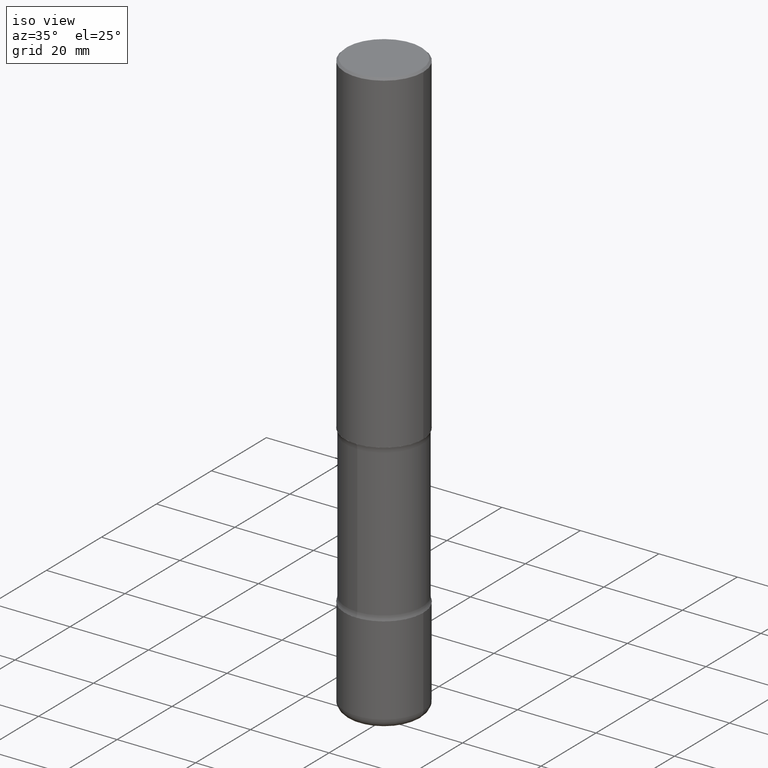
[diagram: clean part render]
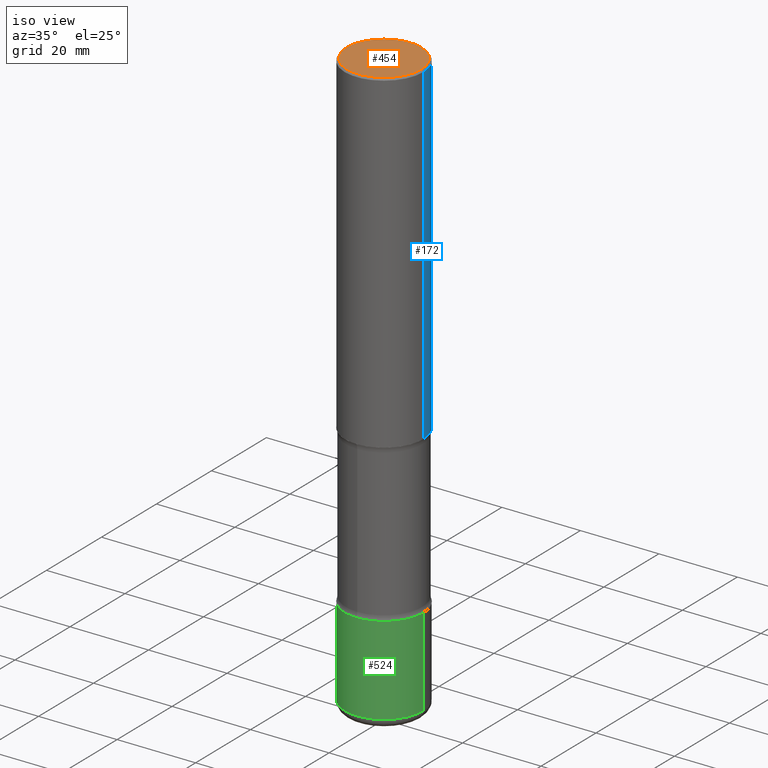
[diagram: same view with three faces highlighted in distinct colors, each labeled with its STEP entity id]
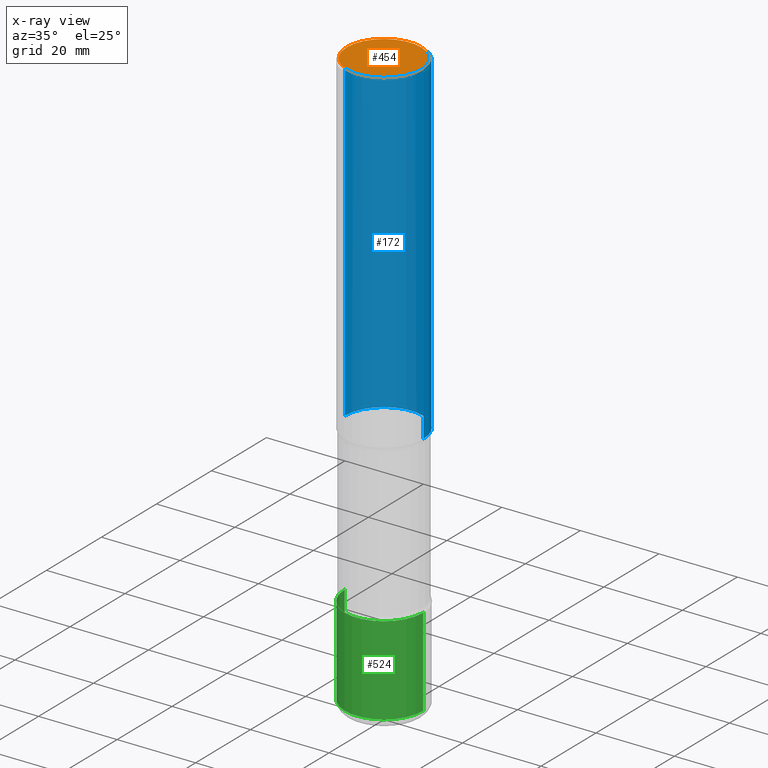
[diagram: x-ray of the same camera — body ghosted, the three highlighted faces saturated]
A machine part, iso view with three faces highlighted in distinct colors.
The next image is the same camera in x-ray (body ghosted, the three faces saturated) — at least one of them is partly hidden behind the body in this view.
Their STEP definitions:

[orange] entity #454 — the highlighted planar face has unit normal (0, -0, -1).
#30 = CARTESIAN_POINT ( 'NONE',  ( -2.087702828670439639E-46, 2.980686340760894400E-32, 8.537024980200822558E-18 ) ) ;
#56 = DIRECTION ( 'NONE',  ( 2.438088387897960049E-29, -3.491481338843145188E-15, -1.000000000000000000 ) ) ;
#63 = ORIENTED_EDGE ( 'NONE', *, *, #123, .T. ) ;
#68 = DIRECTION ( 'NONE',  ( -2.445468806185136597E-29, 3.491481338843145583E-15, 1.000000000000000000 ) ) ;
#98 = PLANE ( 'NONE',  #419 ) ;
#111 = DIRECTION ( 'NONE',  ( 1.000000000000000000, -6.982962677686266711E-15, 4.876212485538976239E-29 ) ) ;
#112 = AXIS2_PLACEMENT_3D ( 'NONE', #30, #531, #200 ) ;
#117 = DIRECTION ( 'NONE',  ( -1.000000000000000000, 6.982962677686265922E-15, -4.876176775795935793E-29 ) ) ;
#123 = EDGE_CURVE ( 'NONE', #320, #530, #335, .T. ) ;
#154 = EDGE_CURVE ( 'NONE', #530, #320, #412, .T. ) ;
#185 = EDGE_LOOP ( 'NONE', ( #63, #556 ) ) ;
#200 = DIRECTION ( 'NONE',  ( 1.000000000000000000, -6.982962677686266711E-15, 4.876212485538976239E-29 ) ) ;
#320 = VERTEX_POINT ( 'NONE', #401 ) ;
#329 = FACE_OUTER_BOUND ( 'NONE', #185, .T. ) ;
#335 = CIRCLE ( 'NONE', #441, 0.3736999999999999211 ) ;
#401 = CARTESIAN_POINT ( 'NONE',  ( -0.3736999999999999211, 2.644447966039788269E-15, 8.537024980182450727E-18 ) ) ;
#412 = CIRCLE ( 'NONE', #112, 0.3736999999999999211 ) ;
#419 = AXIS2_PLACEMENT_3D ( 'NONE', #479, #56, #117 ) ;
#441 = AXIS2_PLACEMENT_3D ( 'NONE', #458, #68, #111 ) ;
#448 = CARTESIAN_POINT ( 'NONE',  ( 0.3736999999999999211, -2.667287895133367964E-15, 8.537024980219274507E-18 ) ) ;
#454 = ADVANCED_FACE ( 'NONE', ( #329 ), #98, .F. ) ;
#458 = CARTESIAN_POINT ( 'NONE',  ( -2.087702828670439639E-46, 2.980686340760894400E-32, 8.537024980200822558E-18 ) ) ;
#479 = CARTESIAN_POINT ( 'NONE',  ( 2.609533152651356620E-15, 0.3736999999999999211, -1.300498063835582814E-15 ) ) ;
#530 = VERTEX_POINT ( 'NONE', #448 ) ;
#531 = DIRECTION ( 'NONE',  ( -2.445468806185136597E-29, 3.491481338843145583E-15, 1.000000000000000000 ) ) ;
#556 = ORIENTED_EDGE ( 'NONE', *, *, #154, .T. ) ;

[blue] entity #172 — the highlighted cylindrical surface (partial cylindrical patch) has radius 10 mm, axis along (-0, 0, 1).
#10 = DIRECTION ( 'NONE',  ( -2.445468806185136597E-29, 3.491481338843145583E-15, 1.000000000000000000 ) ) ;
#17 = DIRECTION ( 'NONE',  ( -2.445468806185136597E-29, 3.491481338843145583E-15, 1.000000000000000000 ) ) ;
#37 = CARTESIAN_POINT ( 'NONE',  ( -0.3937000000000001054, 2.797406750687515181E-15, -1.936584745033357016E-29 ) ) ;
#81 = ORIENTED_EDGE ( 'NONE', *, *, #385, .T. ) ;
#95 = AXIS2_PLACEMENT_3D ( 'NONE', #160, #110, #339 ) ;
#110 = DIRECTION ( 'NONE',  ( -2.445468806185136597E-29, 3.491481338843145583E-15, 1.000000000000000000 ) ) ;
#132 = ORIENTED_EDGE ( 'NONE', *, *, #264, .T. ) ;
#146 = VECTOR ( 'NONE', #358, 39.37007874015748143 ) ;
#160 = CARTESIAN_POINT ( 'NONE',  ( 8.183516813017942119E-29, -1.168389315230470294E-14, -3.346400000000000041 ) ) ;
#171 = CARTESIAN_POINT ( 'NONE',  ( 0.3937000000000001054, -2.749192406205084005E-15, 1.919750796630860452E-29 ) ) ;
#172 = ADVANCED_FACE ( 'NONE', ( #450 ), #240, .T. ) ;
#179 = CARTESIAN_POINT ( 'NONE',  ( 4.890937612370294178E-31, -6.982962677686321191E-17, -0.02000000000000008715 ) ) ;
#189 = DIRECTION ( 'NONE',  ( 1.000000000000000000, -6.982962677686266711E-15, 4.876176775795935793E-29 ) ) ;
#194 = EDGE_LOOP ( 'NONE', ( #81, #132, #274, #470 ) ) ;
#218 = CARTESIAN_POINT ( 'NONE',  ( -0.3937000000000002720, -3.079454638853263992E-15, -3.346400000000000041 ) ) ;
#223 = VERTEX_POINT ( 'NONE', #260 ) ;
#240 = CYLINDRICAL_SURFACE ( 'NONE', #442, 0.3937000000000001054 ) ;
#256 = DIRECTION ( 'NONE',  ( -2.445468806185136877E-29, 3.491481338843145188E-15, 1.000000000000000000 ) ) ;
#260 = CARTESIAN_POINT ( 'NONE',  ( 0.3937000000000002164, -1.443308555850978615E-14, -3.346400000000000041 ) ) ;
#264 = EDGE_CURVE ( 'NONE', #316, #376, #390, .T. ) ;
#273 = CARTESIAN_POINT ( 'NONE',  ( -0.3936999999999999389, 2.679362779428219524E-15, -0.02000000000000008715 ) ) ;
#274 = ORIENTED_EDGE ( 'NONE', *, *, #430, .F. ) ;
#316 = VERTEX_POINT ( 'NONE', #218 ) ;
#321 = EDGE_CURVE ( 'NONE', #223, #512, #560, .T. ) ;
#336 = AXIS2_PLACEMENT_3D ( 'NONE', #179, #10, #371 ) ;
#339 = DIRECTION ( 'NONE',  ( 1.000000000000000000, -6.982962677686265133E-15, 0.000000000000000000 ) ) ;
#358 = DIRECTION ( 'NONE',  ( -2.445468806185136877E-29, 3.491481338843145188E-15, 1.000000000000000000 ) ) ;
#370 = VECTOR ( 'NONE', #256, 39.37007874015748143 ) ;
#371 = DIRECTION ( 'NONE',  ( 1.000000000000000000, -6.982962677686266711E-15, 0.000000000000000000 ) ) ;
#376 = VERTEX_POINT ( 'NONE', #273 ) ;
#385 = EDGE_CURVE ( 'NONE', #223, #316, #500, .T. ) ;
#390 = LINE ( 'NONE', #37, #370 ) ;
#413 = CARTESIAN_POINT ( 'NONE',  ( 0.000000000000000000, 0.000000000000000000, 0.000000000000000000 ) ) ;
#430 = EDGE_CURVE ( 'NONE', #512, #376, #465, .T. ) ;
#442 = AXIS2_PLACEMENT_3D ( 'NONE', #413, #17, #189 ) ;
#449 = CARTESIAN_POINT ( 'NONE',  ( 0.3936999999999999389, -2.770807688499514945E-15, -0.02000000000000008715 ) ) ;
#450 = FACE_OUTER_BOUND ( 'NONE', #194, .T. ) ;
#465 = CIRCLE ( 'NONE', #336, 0.3936999999999999389 ) ;
#470 = ORIENTED_EDGE ( 'NONE', *, *, #321, .F. ) ;
#500 = CIRCLE ( 'NONE', #95, 0.3937000000000002164 ) ;
#512 = VERTEX_POINT ( 'NONE', #449 ) ;
#560 = LINE ( 'NONE', #171, #146 ) ;

[green] entity #524 — the highlighted cylindrical surface (partial cylindrical patch) has radius 10 mm, axis along (-0, 0, 1).
#7 = CARTESIAN_POINT ( 'NONE',  ( -0.3937000000000002164, 2.797406750687515970E-15, -1.936584745033357576E-29 ) ) ;
#20 = DIRECTION ( 'NONE',  ( -2.445468806185136597E-29, 3.491481338843145583E-15, 1.000000000000000000 ) ) ;
#21 = ORIENTED_EDGE ( 'NONE', *, *, #490, .F. ) ;
#24 = CARTESIAN_POINT ( 'NONE',  ( 0.3937000000000001609, -1.993147037091997467E-14, -4.921200000000000685 ) ) ;
#43 = AXIS2_PLACEMENT_3D ( 'NONE', #387, #547, #311 ) ;
#54 = EDGE_CURVE ( 'NONE', #383, #520, #234, .T. ) ;
#72 = CYLINDRICAL_SURFACE ( 'NONE', #187, 0.3937000000000002164 ) ;
#104 = CARTESIAN_POINT ( 'NONE',  ( 1.203464108899829604E-28, -1.718227796471488830E-14, -4.921200000000000685 ) ) ;
#118 = CARTESIAN_POINT ( 'NONE',  ( 0.3937000000000002164, -2.303819046622261022E-14, -5.811000000000001720 ) ) ;
#151 = FACE_OUTER_BOUND ( 'NONE', #431, .T. ) ;
#180 = ORIENTED_EDGE ( 'NONE', *, *, #558, .T. ) ;
#187 = AXIS2_PLACEMENT_3D ( 'NONE', #493, #342, #299 ) ;
#222 = CARTESIAN_POINT ( 'NONE',  ( -0.3937000000000002164, -1.749159130933001301E-14, -5.811000000000001720 ) ) ;
#234 = CIRCLE ( 'NONE', #506, 0.3937000000000001609 ) ;
#239 = VECTOR ( 'NONE', #544, 39.37007874015748143 ) ;
#261 = EDGE_CURVE ( 'NONE', #477, #283, #280, .T. ) ;
#280 = CIRCLE ( 'NONE', #43, 0.3937000000000002720 ) ;
#283 = VERTEX_POINT ( 'NONE', #118 ) ;
#299 = DIRECTION ( 'NONE',  ( 1.000000000000000000, -6.982962677686266711E-15, 4.876176775795935793E-29 ) ) ;
#308 = ORIENTED_EDGE ( 'NONE', *, *, #261, .T. ) ;
#311 = DIRECTION ( 'NONE',  ( 1.000000000000000000, -6.982962677686263555E-15, 0.000000000000000000 ) ) ;
#326 = VECTOR ( 'NONE', #521, 39.37007874015748143 ) ;
#342 = DIRECTION ( 'NONE',  ( -2.445468806185136597E-29, 3.491481338843145583E-15, 1.000000000000000000 ) ) ;
#351 = CARTESIAN_POINT ( 'NONE',  ( 0.3937000000000002164, -2.749192406205084794E-15, 1.919750796630861012E-29 ) ) ;
#383 = VERTEX_POINT ( 'NONE', #427 ) ;
#387 = CARTESIAN_POINT ( 'NONE',  ( 1.421061923274183479E-28, -2.028899806001752700E-14, -5.811000000000001720 ) ) ;
#404 = LINE ( 'NONE', #7, #326 ) ;
#427 = CARTESIAN_POINT ( 'NONE',  ( -0.3937000000000001609, -1.593823126167869208E-14, -4.921200000000000685 ) ) ;
#431 = EDGE_LOOP ( 'NONE', ( #21, #308, #180, #522 ) ) ;
#445 = LINE ( 'NONE', #351, #239 ) ;
#477 = VERTEX_POINT ( 'NONE', #222 ) ;
#490 = EDGE_CURVE ( 'NONE', #477, #383, #404, .T. ) ;
#493 = CARTESIAN_POINT ( 'NONE',  ( 0.000000000000000000, 0.000000000000000000, 0.000000000000000000 ) ) ;
#506 = AXIS2_PLACEMENT_3D ( 'NONE', #104, #20, #536 ) ;
#520 = VERTEX_POINT ( 'NONE', #24 ) ;
#521 = DIRECTION ( 'NONE',  ( -2.445468806185136877E-29, 3.491481338843145188E-15, 1.000000000000000000 ) ) ;
#522 = ORIENTED_EDGE ( 'NONE', *, *, #54, .F. ) ;
#524 = ADVANCED_FACE ( 'NONE', ( #151 ), #72, .T. ) ;
#536 = DIRECTION ( 'NONE',  ( 1.000000000000000000, -6.982962677686265922E-15, 0.000000000000000000 ) ) ;
#544 = DIRECTION ( 'NONE',  ( -2.445468806185136877E-29, 3.491481338843145188E-15, 1.000000000000000000 ) ) ;
#547 = DIRECTION ( 'NONE',  ( -2.445468806185136597E-29, 3.491481338843145583E-15, 1.000000000000000000 ) ) ;
#558 = EDGE_CURVE ( 'NONE', #283, #520, #445, .T. ) ;